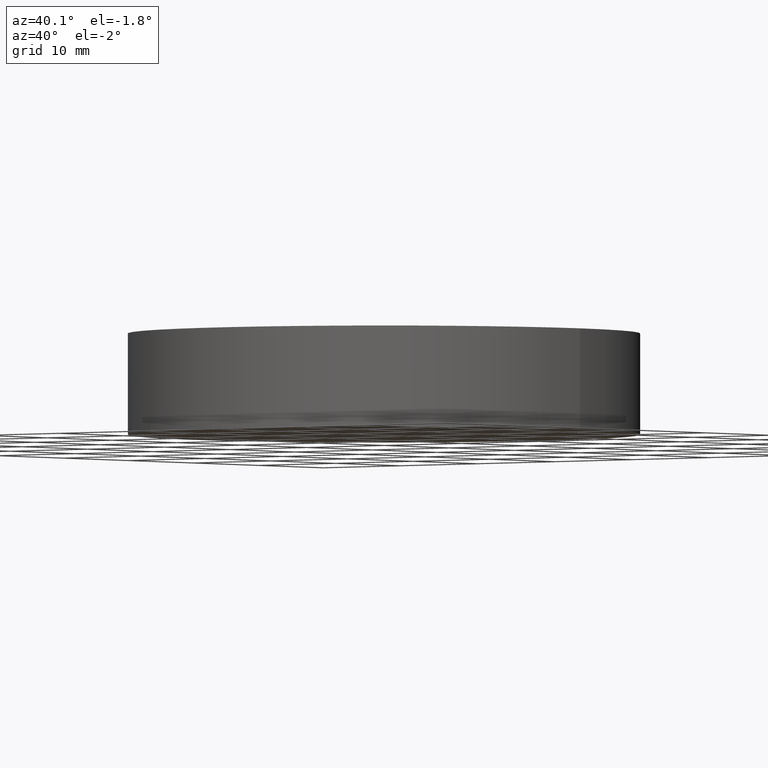
[diagram: clean part render]
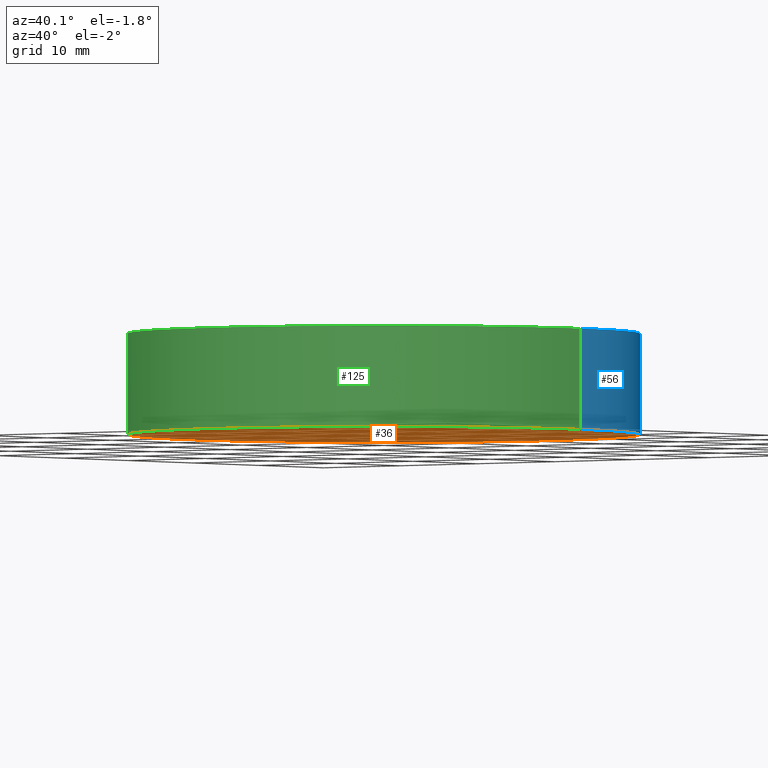
[diagram: same view with three faces highlighted in distinct colors, each labeled with its STEP entity id]
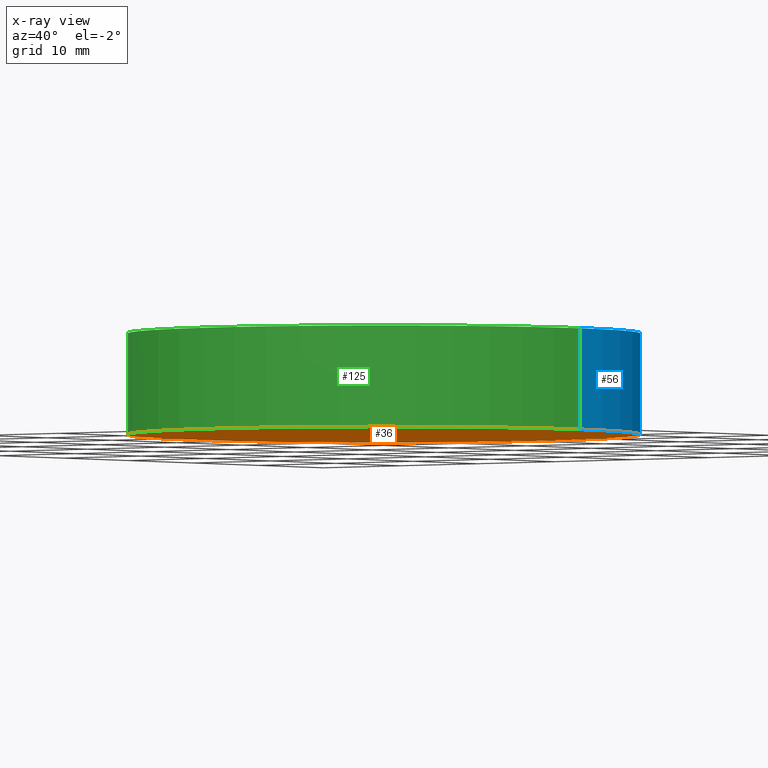
[diagram: x-ray of the same camera — body ghosted, the three highlighted faces saturated]
A machine part, auxiliary view with three faces highlighted in distinct colors.
The next image is the same camera in x-ray (body ghosted, the three faces saturated) — at least one of them is partly hidden behind the body in this view.
Their STEP definitions:

[orange] entity #36 — the highlighted planar face has unit normal (0, 0, 1).
#9 = DIRECTION ( 'NONE',  ( 1.000000000000000000, 0.0000000000000000000, 0.0000000000000000000 ) ) ;
#15 = CIRCLE ( 'NONE', #84, 25.39999999999999900 ) ;
#28 = AXIS2_PLACEMENT_3D ( 'NONE', #43, #120, #130 ) ;
#29 = CARTESIAN_POINT ( 'NONE',  ( 25.39999999999999900, 3.110602869834276900E-015, 0.0000000000000000000 ) ) ;
#31 = AXIS2_PLACEMENT_3D ( 'NONE', #98, #91, #123 ) ;
#36 = ADVANCED_FACE ( 'NONE', ( #45 ), #73, .F. ) ;
#43 = CARTESIAN_POINT ( 'NONE',  ( 0.0000000000000000000, 0.0000000000000000000, 0.0000000000000000000 ) ) ;
#44 = ORIENTED_EDGE ( 'NONE', *, *, #96, .F. ) ;
#45 = FACE_OUTER_BOUND ( 'NONE', #50, .T. ) ;
#50 = EDGE_LOOP ( 'NONE', ( #67, #44 ) ) ;
#53 = CARTESIAN_POINT ( 'NONE',  ( 0.0000000000000000000, 0.0000000000000000000, 0.0000000000000000000 ) ) ;
#63 = CIRCLE ( 'NONE', #31, 25.39999999999999900 ) ;
#67 = ORIENTED_EDGE ( 'NONE', *, *, #139, .F. ) ;
#73 = PLANE ( 'NONE',  #28 ) ;
#78 = VERTEX_POINT ( 'NONE', #112 ) ;
#84 = AXIS2_PLACEMENT_3D ( 'NONE', #53, #86, #9 ) ;
#86 = DIRECTION ( 'NONE',  ( 0.0000000000000000000, 0.0000000000000000000, 1.000000000000000000 ) ) ;
#91 = DIRECTION ( 'NONE',  ( 0.0000000000000000000, 0.0000000000000000000, 1.000000000000000000 ) ) ;
#96 = EDGE_CURVE ( 'NONE', #105, #78, #15, .T. ) ;
#98 = CARTESIAN_POINT ( 'NONE',  ( 0.0000000000000000000, 0.0000000000000000000, 0.0000000000000000000 ) ) ;
#105 = VERTEX_POINT ( 'NONE', #29 ) ;
#112 = CARTESIAN_POINT ( 'NONE',  ( -25.39999999999999900, 0.0000000000000000000, 0.0000000000000000000 ) ) ;
#120 = DIRECTION ( 'NONE',  ( 0.0000000000000000000, 0.0000000000000000000, 1.000000000000000000 ) ) ;
#123 = DIRECTION ( 'NONE',  ( 1.000000000000000000, 0.0000000000000000000, 0.0000000000000000000 ) ) ;
#130 = DIRECTION ( 'NONE',  ( 1.000000000000000000, 0.0000000000000000000, -0.0000000000000000000 ) ) ;
#139 = EDGE_CURVE ( 'NONE', #78, #105, #63, .T. ) ;

[blue] entity #56 — the highlighted cylindrical surface (partial cylindrical patch) has radius 25.4 mm, axis along (-0, -0, -1).
#5 = ORIENTED_EDGE ( 'NONE', *, *, #96, .T. ) ;
#6 = ORIENTED_EDGE ( 'NONE', *, *, #14, .F. ) ;
#9 = DIRECTION ( 'NONE',  ( 1.000000000000000000, 0.0000000000000000000, 0.0000000000000000000 ) ) ;
#11 = CARTESIAN_POINT ( 'NONE',  ( 0.0000000000000000000, 0.0000000000000000000, 10.00000000000000000 ) ) ;
#14 = EDGE_CURVE ( 'NONE', #124, #78, #17, .T. ) ;
#15 = CIRCLE ( 'NONE', #84, 25.39999999999999900 ) ;
#17 = LINE ( 'NONE', #104, #76 ) ;
#19 = ORIENTED_EDGE ( 'NONE', *, *, #22, .T. ) ;
#22 = EDGE_CURVE ( 'NONE', #136, #105, #23, .T. ) ;
#23 = LINE ( 'NONE', #51, #82 ) ;
#24 = CARTESIAN_POINT ( 'NONE',  ( 0.0000000000000000000, 0.0000000000000000000, 10.00000000000000000 ) ) ;
#29 = CARTESIAN_POINT ( 'NONE',  ( 25.39999999999999900, 3.110602869834276900E-015, 0.0000000000000000000 ) ) ;
#32 = CYLINDRICAL_SURFACE ( 'NONE', #95, 25.39999999999999900 ) ;
#33 = EDGE_CURVE ( 'NONE', #136, #124, #97, .T. ) ;
#37 = DIRECTION ( 'NONE',  ( -1.000000000000000000, 0.0000000000000000000, 0.0000000000000000000 ) ) ;
#42 = CARTESIAN_POINT ( 'NONE',  ( -25.39999999999999900, 0.0000000000000000000, 10.00000000000000000 ) ) ;
#46 = FACE_OUTER_BOUND ( 'NONE', #92, .T. ) ;
#47 = CARTESIAN_POINT ( 'NONE',  ( 25.39999999999999900, 3.110602869834276900E-015, 10.00000000000000000 ) ) ;
#51 = CARTESIAN_POINT ( 'NONE',  ( 25.39999999999999900, 3.110602869834276900E-015, 10.00000000000000000 ) ) ;
#53 = CARTESIAN_POINT ( 'NONE',  ( 0.0000000000000000000, 0.0000000000000000000, 0.0000000000000000000 ) ) ;
#56 = ADVANCED_FACE ( 'NONE', ( #46 ), #32, .T. ) ;
#61 = DIRECTION ( 'NONE',  ( -0.0000000000000000000, -0.0000000000000000000, -1.000000000000000000 ) ) ;
#72 = DIRECTION ( 'NONE',  ( -0.0000000000000000000, -0.0000000000000000000, -1.000000000000000000 ) ) ;
#76 = VECTOR ( 'NONE', #115, 1000.000000000000000 ) ;
#78 = VERTEX_POINT ( 'NONE', #112 ) ;
#82 = VECTOR ( 'NONE', #72, 1000.000000000000000 ) ;
#84 = AXIS2_PLACEMENT_3D ( 'NONE', #53, #86, #9 ) ;
#86 = DIRECTION ( 'NONE',  ( 0.0000000000000000000, 0.0000000000000000000, 1.000000000000000000 ) ) ;
#90 = ORIENTED_EDGE ( 'NONE', *, *, #33, .F. ) ;
#92 = EDGE_LOOP ( 'NONE', ( #90, #19, #5, #6 ) ) ;
#95 = AXIS2_PLACEMENT_3D ( 'NONE', #24, #61, #37 ) ;
#96 = EDGE_CURVE ( 'NONE', #105, #78, #15, .T. ) ;
#97 = CIRCLE ( 'NONE', #126, 25.39999999999999900 ) ;
#104 = CARTESIAN_POINT ( 'NONE',  ( -25.39999999999999900, 0.0000000000000000000, 10.00000000000000000 ) ) ;
#105 = VERTEX_POINT ( 'NONE', #29 ) ;
#112 = CARTESIAN_POINT ( 'NONE',  ( -25.39999999999999900, 0.0000000000000000000, 0.0000000000000000000 ) ) ;
#113 = DIRECTION ( 'NONE',  ( 0.0000000000000000000, 0.0000000000000000000, 1.000000000000000000 ) ) ;
#114 = DIRECTION ( 'NONE',  ( 1.000000000000000000, 0.0000000000000000000, 0.0000000000000000000 ) ) ;
#115 = DIRECTION ( 'NONE',  ( -0.0000000000000000000, -0.0000000000000000000, -1.000000000000000000 ) ) ;
#124 = VERTEX_POINT ( 'NONE', #42 ) ;
#126 = AXIS2_PLACEMENT_3D ( 'NONE', #11, #113, #114 ) ;
#136 = VERTEX_POINT ( 'NONE', #47 ) ;

[green] entity #125 — the highlighted cylindrical surface (partial cylindrical patch) has radius 25.4 mm, axis along (-0, -0, -1).
#3 = FACE_OUTER_BOUND ( 'NONE', #39, .T. ) ;
#14 = EDGE_CURVE ( 'NONE', #124, #78, #17, .T. ) ;
#16 = ORIENTED_EDGE ( 'NONE', *, *, #14, .T. ) ;
#17 = LINE ( 'NONE', #104, #76 ) ;
#22 = EDGE_CURVE ( 'NONE', #136, #105, #23, .T. ) ;
#23 = LINE ( 'NONE', #51, #82 ) ;
#29 = CARTESIAN_POINT ( 'NONE',  ( 25.39999999999999900, 3.110602869834276900E-015, 0.0000000000000000000 ) ) ;
#31 = AXIS2_PLACEMENT_3D ( 'NONE', #98, #91, #123 ) ;
#35 = CIRCLE ( 'NONE', #89, 25.39999999999999900 ) ;
#39 = EDGE_LOOP ( 'NONE', ( #122, #94, #16, #74 ) ) ;
#41 = AXIS2_PLACEMENT_3D ( 'NONE', #77, #102, #79 ) ;
#42 = CARTESIAN_POINT ( 'NONE',  ( -25.39999999999999900, 0.0000000000000000000, 10.00000000000000000 ) ) ;
#47 = CARTESIAN_POINT ( 'NONE',  ( 25.39999999999999900, 3.110602869834276900E-015, 10.00000000000000000 ) ) ;
#51 = CARTESIAN_POINT ( 'NONE',  ( 25.39999999999999900, 3.110602869834276900E-015, 10.00000000000000000 ) ) ;
#59 = DIRECTION ( 'NONE',  ( 1.000000000000000000, 0.0000000000000000000, 0.0000000000000000000 ) ) ;
#63 = CIRCLE ( 'NONE', #31, 25.39999999999999900 ) ;
#72 = DIRECTION ( 'NONE',  ( -0.0000000000000000000, -0.0000000000000000000, -1.000000000000000000 ) ) ;
#74 = ORIENTED_EDGE ( 'NONE', *, *, #139, .T. ) ;
#76 = VECTOR ( 'NONE', #115, 1000.000000000000000 ) ;
#77 = CARTESIAN_POINT ( 'NONE',  ( 0.0000000000000000000, 0.0000000000000000000, 10.00000000000000000 ) ) ;
#78 = VERTEX_POINT ( 'NONE', #112 ) ;
#79 = DIRECTION ( 'NONE',  ( -1.000000000000000000, 0.0000000000000000000, 0.0000000000000000000 ) ) ;
#82 = VECTOR ( 'NONE', #72, 1000.000000000000000 ) ;
#85 = CYLINDRICAL_SURFACE ( 'NONE', #41, 25.39999999999999900 ) ;
#89 = AXIS2_PLACEMENT_3D ( 'NONE', #121, #134, #59 ) ;
#91 = DIRECTION ( 'NONE',  ( 0.0000000000000000000, 0.0000000000000000000, 1.000000000000000000 ) ) ;
#94 = ORIENTED_EDGE ( 'NONE', *, *, #106, .F. ) ;
#98 = CARTESIAN_POINT ( 'NONE',  ( 0.0000000000000000000, 0.0000000000000000000, 0.0000000000000000000 ) ) ;
#102 = DIRECTION ( 'NONE',  ( -0.0000000000000000000, -0.0000000000000000000, -1.000000000000000000 ) ) ;
#104 = CARTESIAN_POINT ( 'NONE',  ( -25.39999999999999900, 0.0000000000000000000, 10.00000000000000000 ) ) ;
#105 = VERTEX_POINT ( 'NONE', #29 ) ;
#106 = EDGE_CURVE ( 'NONE', #124, #136, #35, .T. ) ;
#112 = CARTESIAN_POINT ( 'NONE',  ( -25.39999999999999900, 0.0000000000000000000, 0.0000000000000000000 ) ) ;
#115 = DIRECTION ( 'NONE',  ( -0.0000000000000000000, -0.0000000000000000000, -1.000000000000000000 ) ) ;
#121 = CARTESIAN_POINT ( 'NONE',  ( 0.0000000000000000000, 0.0000000000000000000, 10.00000000000000000 ) ) ;
#122 = ORIENTED_EDGE ( 'NONE', *, *, #22, .F. ) ;
#123 = DIRECTION ( 'NONE',  ( 1.000000000000000000, 0.0000000000000000000, 0.0000000000000000000 ) ) ;
#124 = VERTEX_POINT ( 'NONE', #42 ) ;
#125 = ADVANCED_FACE ( 'NONE', ( #3 ), #85, .T. ) ;
#134 = DIRECTION ( 'NONE',  ( 0.0000000000000000000, 0.0000000000000000000, 1.000000000000000000 ) ) ;
#136 = VERTEX_POINT ( 'NONE', #47 ) ;
#139 = EDGE_CURVE ( 'NONE', #78, #105, #63, .T. ) ;